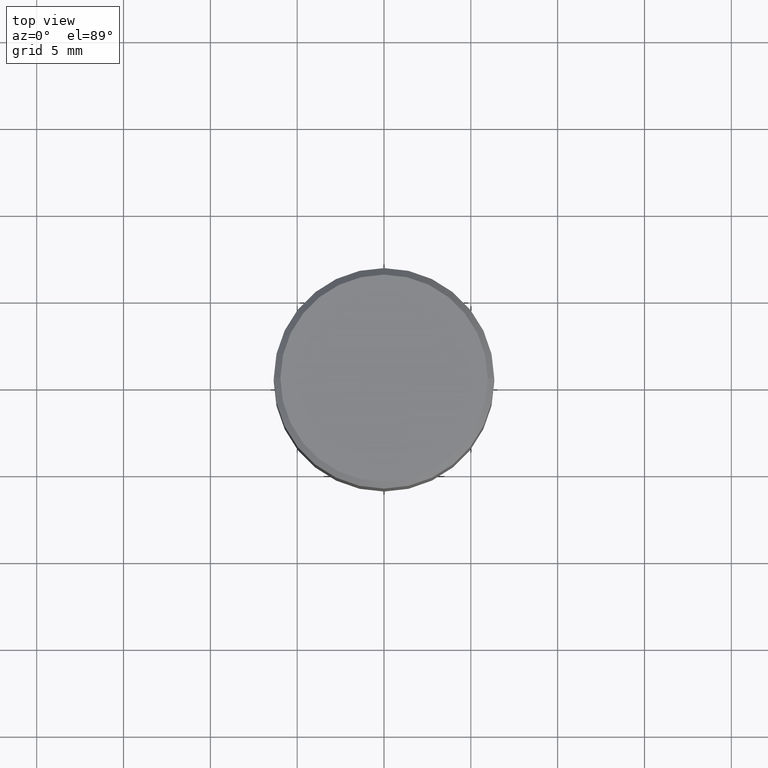
[diagram: clean part render]
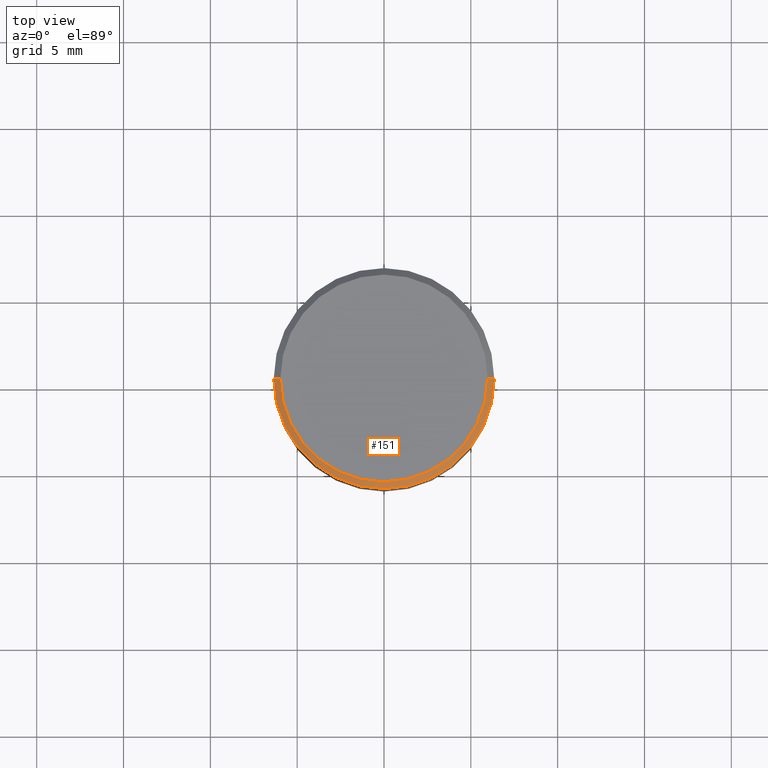
[diagram: same view with one face highlighted and labeled with its STEP entity id]
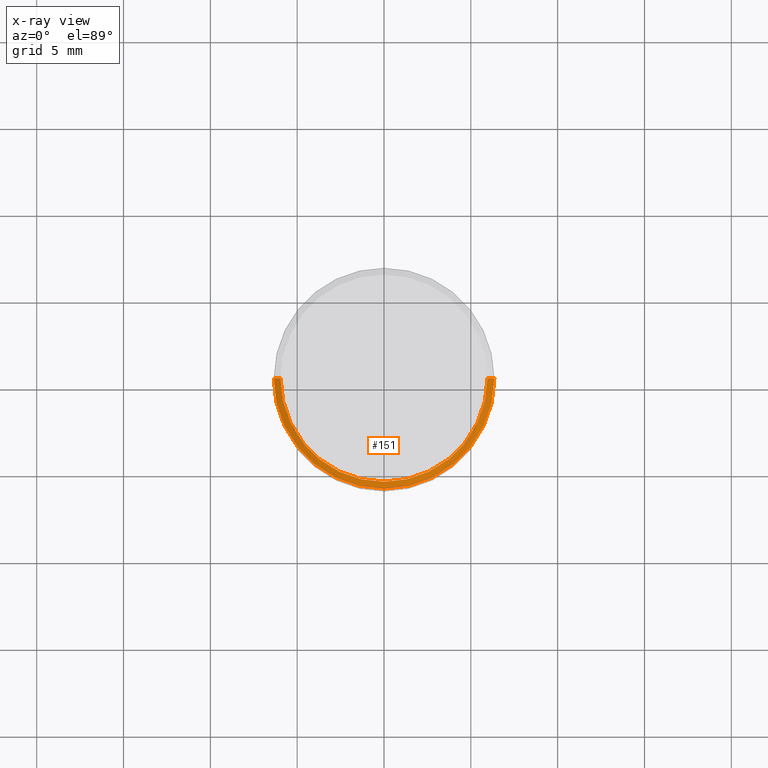
[diagram: x-ray of the same camera — body ghosted, the highlighted face saturated]
A machine part, top view. The second image highlights one B-rep face of the part: STEP entity #151.
The next image is the same camera in x-ray: the body ghosted, the highlighted face saturated — about 0% of this face is hidden behind the body in this view.
In plain terms, the highlighted conical surface has half-angle 45 deg.
Its self-contained STEP definition (entity closure, byte-faithful):
#2 = AXIS2_PLACEMENT_3D ( 'NONE', #61, #448, #134 ) ;
#5 = LINE ( 'NONE', #297, #221 ) ;
#8 = EDGE_CURVE ( 'NONE', #74, #70, #304, .T. ) ;
#9 = ORIENTED_EDGE ( 'NONE', *, *, #217, .F. ) ;
#43 = EDGE_LOOP ( 'NONE', ( #376, #9, #161, #218 ) ) ;
#61 = CARTESIAN_POINT ( 'NONE',  ( 3.668203209277705088E-31, -5.237222008264718399E-17, -0.01499999999999999944 ) ) ;
#62 = CARTESIAN_POINT ( 'NONE',  ( -0.2349999999999999867, 1.667182339297596256E-15, 1.568636843340762393E-16 ) ) ;
#70 = VERTEX_POINT ( 'NONE', #352 ) ;
#74 = VERTEX_POINT ( 'NONE', #99 ) ;
#76 = VECTOR ( 'NONE', #225, 39.37007874015748143 ) ;
#94 = EDGE_CURVE ( 'NONE', #185, #70, #205, .T. ) ;
#99 = CARTESIAN_POINT ( 'NONE',  ( 0.2349999999999999867, -1.689856874500919833E-15, 1.568636843340994368E-16 ) ) ;
#103 = CARTESIAN_POINT ( 'NONE',  ( -0.2500000000000000000, 1.047539074263934229E-15, -0.01499999999999999944 ) ) ;
#106 = DIRECTION ( 'NONE',  ( 2.445468806185136597E-29, -3.491481338843145583E-15, -1.000000000000000000 ) ) ;
#119 = CARTESIAN_POINT ( 'NONE',  ( 0.2500000000000000000, -1.767496719525530167E-15, -0.01499999999999999944 ) ) ;
#134 = DIRECTION ( 'NONE',  ( 1.000000000000000000, -6.982962677686266711E-15, 0.000000000000000000 ) ) ;
#140 = CIRCLE ( 'NONE', #267, 0.2349999999999999867 ) ;
#151 = ADVANCED_FACE ( 'NONE', ( #371 ), #206, .T. ) ;
#161 = ORIENTED_EDGE ( 'NONE', *, *, #182, .T. ) ;
#169 = DIRECTION ( 'NONE',  ( -0.7071067811865441310, 2.468850131082221167E-15, -0.7071067811865509034 ) ) ;
#182 = EDGE_CURVE ( 'NONE', #337, #185, #5, .T. ) ;
#185 = VERTEX_POINT ( 'NONE', #103 ) ;
#205 = CIRCLE ( 'NONE', #2, 0.2500000000000000000 ) ;
#206 = CONICAL_SURFACE ( 'NONE', #339, 0.2500000000000000000, 0.7853981633974435050 ) ;
#217 = EDGE_CURVE ( 'NONE', #337, #74, #140, .T. ) ;
#218 = ORIENTED_EDGE ( 'NONE', *, *, #94, .T. ) ;
#221 = VECTOR ( 'NONE', #169, 39.37007874015748143 ) ;
#225 = DIRECTION ( 'NONE',  ( 0.7071067811865441310, -7.319954787623245001E-15, -0.7071067811865509034 ) ) ;
#256 = CARTESIAN_POINT ( 'NONE',  ( 3.668203209277705088E-31, -5.237222008264718399E-17, -0.01499999999999999944 ) ) ;
#257 = DIRECTION ( 'NONE',  ( -1.000000000000000000, 6.982962677686266711E-15, 0.000000000000000000 ) ) ;
#267 = AXIS2_PLACEMENT_3D ( 'NONE', #320, #324, #322 ) ;
#297 = CARTESIAN_POINT ( 'NONE',  ( -0.2500000000000000000, 1.693368449338919401E-15, -0.01499999999999999944 ) ) ;
#304 = LINE ( 'NONE', #119, #76 ) ;
#320 = CARTESIAN_POINT ( 'NONE',  ( -3.836052468622837406E-45, 5.476866265946494270E-31, 1.568636843340877764E-16 ) ) ;
#322 = DIRECTION ( 'NONE',  ( 1.000000000000000000, -6.982962677686267499E-15, 4.878549297894958458E-29 ) ) ;
#324 = DIRECTION ( 'NONE',  ( -2.445468806185136597E-29, 3.491481338843145583E-15, 1.000000000000000000 ) ) ;
#337 = VERTEX_POINT ( 'NONE', #62 ) ;
#339 = AXIS2_PLACEMENT_3D ( 'NONE', #256, #106, #257 ) ;
#352 = CARTESIAN_POINT ( 'NONE',  ( 0.2500000000000000000, -1.798112889504214151E-15, -0.01499999999999999944 ) ) ;
#371 = FACE_OUTER_BOUND ( 'NONE', #43, .T. ) ;
#376 = ORIENTED_EDGE ( 'NONE', *, *, #8, .F. ) ;
#448 = DIRECTION ( 'NONE',  ( -2.445468806185136597E-29, 3.491481338843145583E-15, 1.000000000000000000 ) ) ;